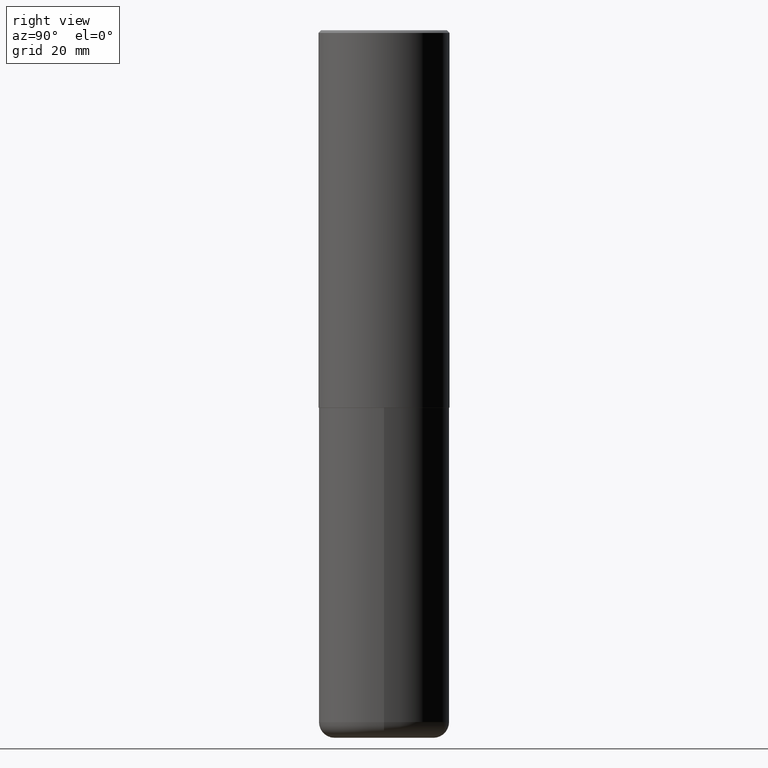
[diagram: clean part render]
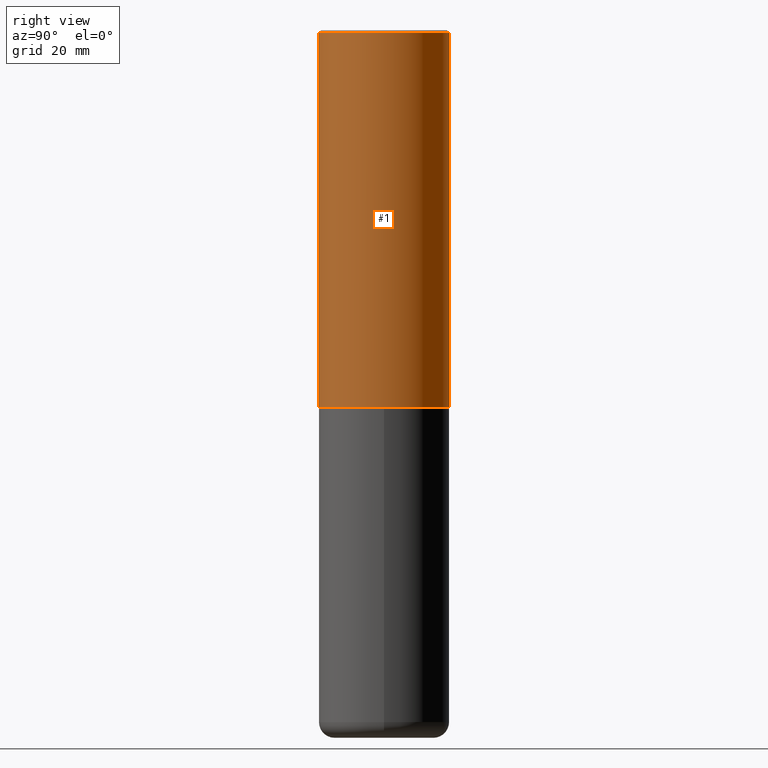
[diagram: same view with one face highlighted and labeled with its STEP entity id]
A machine part, right view. The second image highlights one B-rep face of the part: STEP entity #1.
In plain terms, the highlighted cylindrical surface (partial cylindrical patch) has radius 12.5006 mm, axis along (-0, 0, 1).
Its self-contained STEP definition (entity closure, byte-faithful):
#1 = ADVANCED_FACE ( 'NONE', ( #165 ), #102, .T. ) ;
#20 = CIRCLE ( 'NONE', #370, 0.4921500000000003094 ) ;
#32 = EDGE_CURVE ( 'NONE', #33, #401, #364, .T. ) ;
#33 = VERTEX_POINT ( 'NONE', #87 ) ;
#34 = VERTEX_POINT ( 'NONE', #197 ) ;
#48 = DIRECTION ( 'NONE',  ( -6.982962677686265922E-15, -1.000000000000000000, 3.330506545156063891E-15 ) ) ;
#49 = EDGE_CURVE ( 'NONE', #401, #167, #155, .T. ) ;
#61 = DIRECTION ( 'NONE',  ( -2.445229172240879899E-29, 3.491824508290438613E-15, 1.000000000000000000 ) ) ;
#71 = CARTESIAN_POINT ( 'NONE',  ( 0.000000000000000000, 0.000000000000000000, 0.000000000000000000 ) ) ;
#87 = CARTESIAN_POINT ( 'NONE',  ( -3.436665081823228329E-15, -0.4921500000000101904, -2.833699999999998997 ) ) ;
#89 = DIRECTION ( 'NONE',  ( -6.982962677686265922E-15, -1.000000000000000000, 3.491824508290438219E-15 ) ) ;
#102 = CYLINDRICAL_SURFACE ( 'NONE', #199, 0.4921500000000000874 ) ;
#103 = DIRECTION ( 'NONE',  ( -2.445229172240879899E-29, 3.491824508290438613E-15, 1.000000000000000000 ) ) ;
#104 = VECTOR ( 'NONE', #103, 39.37007874015748143 ) ;
#108 = DIRECTION ( 'NONE',  ( -2.445229172240879899E-29, 3.491824508290438219E-15, 1.000000000000000000 ) ) ;
#130 = ORIENTED_EDGE ( 'NONE', *, *, #32, .F. ) ;
#131 = EDGE_CURVE ( 'NONE', #33, #34, #20, .T. ) ;
#133 = ORIENTED_EDGE ( 'NONE', *, *, #131, .T. ) ;
#135 = CARTESIAN_POINT ( 'NONE',  ( 4.890458344481786073E-31, -6.983649016580912824E-17, -0.02000000000000010797 ) ) ;
#155 = CIRCLE ( 'NONE', #407, 0.4921499999999999764 ) ;
#165 = FACE_OUTER_BOUND ( 'NONE', #361, .T. ) ;
#167 = VERTEX_POINT ( 'NONE', #221 ) ;
#170 = DIRECTION ( 'NONE',  ( -6.982962677686265922E-15, -1.000000000000000000, 3.495297233588267464E-15 ) ) ;
#197 = CARTESIAN_POINT ( 'NONE',  ( 3.496936074043369184E-15, 0.4921499999999904285, -2.833700000000002106 ) ) ;
#199 = AXIS2_PLACEMENT_3D ( 'NONE', #71, #108, #89 ) ;
#204 = CARTESIAN_POINT ( 'NONE',  ( 6.929045905378983914E-29, -9.894783109142616722E-15, -2.833700000000000330 ) ) ;
#205 = CARTESIAN_POINT ( 'NONE',  ( -3.376394089603258262E-15, -0.4921500000000000319, -0.01999999999999838712 ) ) ;
#220 = EDGE_CURVE ( 'NONE', #34, #167, #231, .T. ) ;
#221 = CARTESIAN_POINT ( 'NONE',  ( 3.436665081823296171E-15, 0.4921499999999999209, -0.02000000000000182535 ) ) ;
#231 = LINE ( 'NONE', #327, #322 ) ;
#241 = DIRECTION ( 'NONE',  ( -2.445229172240879899E-29, 3.491824508290438219E-15, 1.000000000000000000 ) ) ;
#245 = DIRECTION ( 'NONE',  ( -2.445229172240879899E-29, 3.491824508290438219E-15, 1.000000000000000000 ) ) ;
#300 = ORIENTED_EDGE ( 'NONE', *, *, #220, .T. ) ;
#316 = ORIENTED_EDGE ( 'NONE', *, *, #49, .F. ) ;
#322 = VECTOR ( 'NONE', #61, 39.37007874015748143 ) ;
#327 = CARTESIAN_POINT ( 'NONE',  ( 3.496936074043333291E-15, 0.4921500000000000874, -1.718501431755139545E-15 ) ) ;
#361 = EDGE_LOOP ( 'NONE', ( #133, #300, #316, #130 ) ) ;
#364 = LINE ( 'NONE', #373, #104 ) ;
#370 = AXIS2_PLACEMENT_3D ( 'NONE', #204, #245, #48 ) ;
#373 = CARTESIAN_POINT ( 'NONE',  ( -3.436665081823296565E-15, -0.4921500000000000874, 1.718501431755139545E-15 ) ) ;
#401 = VERTEX_POINT ( 'NONE', #205 ) ;
#407 = AXIS2_PLACEMENT_3D ( 'NONE', #135, #241, #170 ) ;